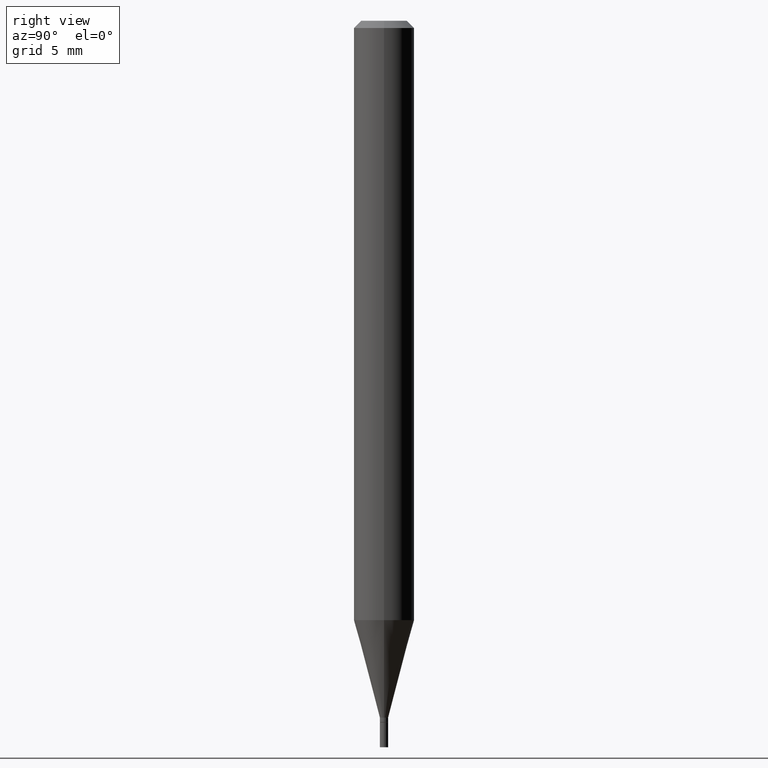
[diagram: clean part render]
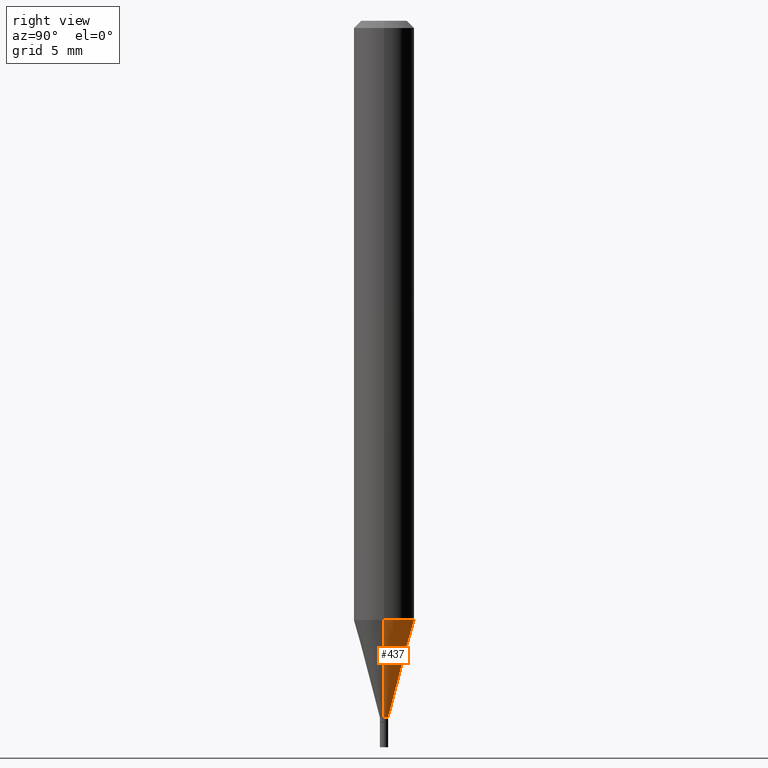
[diagram: same view with one face highlighted and labeled with its STEP entity id]
A machine part, right view. The second image highlights one B-rep face of the part: STEP entity #437.
In plain terms, the highlighted conical surface has half-angle 15 deg.
Its self-contained STEP definition (entity closure, byte-faithful):
#10 = CARTESIAN_POINT ( 'NONE',  ( 0.008499999999999922548, -5.083596829355619552E-15, -1.439000000000000057 ) ) ;
#17 = AXIS2_PLACEMENT_3D ( 'NONE', #68, #205, #340 ) ;
#18 = EDGE_CURVE ( 'NONE', #117, #213, #319, .T. ) ;
#68 = CARTESIAN_POINT ( 'NONE',  ( 3.519029612100411702E-29, -5.024241646595286853E-15, -1.439000000000000057 ) ) ;
#69 = CARTESIAN_POINT ( 'NONE',  ( -0.06249999999999999306, -3.876511606232199217E-15, -1.237469256391281025 ) ) ;
#84 = CARTESIAN_POINT ( 'NONE',  ( 3.519029612100411702E-29, -5.024241646595286853E-15, -1.439000000000000057 ) ) ;
#89 = ORIENTED_EDGE ( 'NONE', *, *, #136, .T. ) ;
#117 = VERTEX_POINT ( 'NONE', #118 ) ;
#118 = CARTESIAN_POINT ( 'NONE',  ( -0.008499999999999922548, -4.420178560143938947E-15, -1.439000000000000057 ) ) ;
#128 = DIRECTION ( 'NONE',  ( 0.2588190451025214611, 1.565188264969621573E-15, 0.9659258262890682012 ) ) ;
#134 = ORIENTED_EDGE ( 'NONE', *, *, #200, .F. ) ;
#136 = EDGE_CURVE ( 'NONE', #370, #117, #344, .T. ) ;
#140 = ORIENTED_EDGE ( 'NONE', *, *, #18, .T. ) ;
#155 = LINE ( 'NONE', #322, #406 ) ;
#159 = CARTESIAN_POINT ( 'NONE',  ( 0.06249999999999999306, -4.757035983437653502E-15, -1.237469256391281025 ) ) ;
#179 = CIRCLE ( 'NONE', #457, 0.06250000000000000000 ) ;
#180 = DIRECTION ( 'NONE',  ( -0.2588190451025214611, 5.211531920934551042E-15, 0.9659258262890682012 ) ) ;
#182 = DIRECTION ( 'NONE',  ( -2.445468806185136597E-29, 3.491481338843145583E-15, 1.000000000000000000 ) ) ;
#200 = EDGE_CURVE ( 'NONE', #370, #352, #155, .T. ) ;
#205 = DIRECTION ( 'NONE',  ( -2.445468806185136597E-29, 3.491481338843145583E-15, 1.000000000000000000 ) ) ;
#213 = VERTEX_POINT ( 'NONE', #69 ) ;
#215 = VECTOR ( 'NONE', #180, 39.37007874015747433 ) ;
#228 = AXIS2_PLACEMENT_3D ( 'NONE', #84, #182, #248 ) ;
#248 = DIRECTION ( 'NONE',  ( 1.000000000000000000, -6.982962677686225690E-15, 0.000000000000000000 ) ) ;
#257 = CARTESIAN_POINT ( 'NONE',  ( 3.026192465117994899E-29, -4.320600816082261833E-15, -1.237469256391281025 ) ) ;
#265 = EDGE_LOOP ( 'NONE', ( #89, #140, #458, #134 ) ) ;
#319 = LINE ( 'NONE', #459, #215 ) ;
#322 = CARTESIAN_POINT ( 'NONE',  ( 0.008499999999999922548, -5.083596829355619552E-15, -1.439000000000000057 ) ) ;
#340 = DIRECTION ( 'NONE',  ( 1.000000000000000000, -6.982962677686225690E-15, 0.000000000000000000 ) ) ;
#344 = CIRCLE ( 'NONE', #17, 0.008499999999999922548 ) ;
#350 = FACE_OUTER_BOUND ( 'NONE', #265, .T. ) ;
#352 = VERTEX_POINT ( 'NONE', #159 ) ;
#370 = VERTEX_POINT ( 'NONE', #10 ) ;
#386 = EDGE_CURVE ( 'NONE', #352, #213, #179, .T. ) ;
#406 = VECTOR ( 'NONE', #128, 39.37007874015747433 ) ;
#420 = CONICAL_SURFACE ( 'NONE', #228, 0.008499999999999922548, 0.2617993877991501295 ) ;
#433 = DIRECTION ( 'NONE',  ( -2.445468806185136597E-29, 3.491481338843145583E-15, 1.000000000000000000 ) ) ;
#437 = ADVANCED_FACE ( 'NONE', ( #350 ), #420, .T. ) ;
#457 = AXIS2_PLACEMENT_3D ( 'NONE', #257, #433, #465 ) ;
#458 = ORIENTED_EDGE ( 'NONE', *, *, #386, .F. ) ;
#459 = CARTESIAN_POINT ( 'NONE',  ( -0.008499999999999922548, -4.963845514055678678E-15, -1.439000000000000057 ) ) ;
#465 = DIRECTION ( 'NONE',  ( 1.000000000000000000, -6.982962677686262766E-15, 0.000000000000000000 ) ) ;